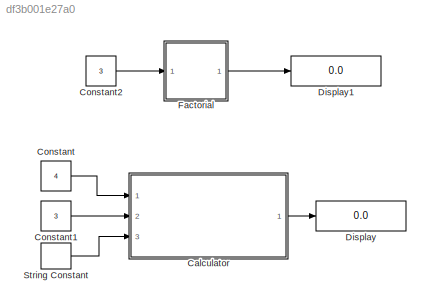
MODEL slx_df3b001e27a0
KIND model
CONFIG AbsTol = auto
CONFIG EnableMultiTasking = off
CONFIG FixedStep = auto
CONFIG MaxStep = auto
CONFIG MinStep = auto
CONFIG RelTol = 1e-3
CONFIG SampleTimeConstraint = Unconstrained
CONFIG SolverName = FixedStepDiscrete
CONFIG StartTime = 0.0
CONFIG StopTime = 20
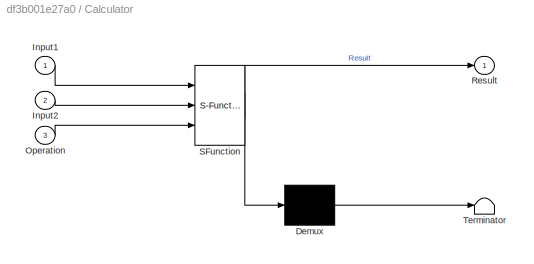
BLOCK [SubSystem] Calculator
  ErrorFcn = Stateflow.Translate.translate
  PermitHierarchicalResolution = ExplicitOnly
  Ports = [3, 1]
  RequestExecContextInheritance = off
  SFBlockType = Chart
  TreatAsAtomicUnit = on
BLOCK [Demux] Calculator/ Demux 
  Outputs = 1
  Ports = [1, 1]
BLOCK [S-Function] Calculator/ SFunction 
  EnableBusSupport = on
  FunctionName = sf_sfun
  PortCounts = [3 2]
  Ports = [3, 2]
  SFcnIsStateOwnerBlock = off
  SFunctionDeploymentMode = off
  Tag = Stateflow S-Function 3
BLOCK [Terminator] Calculator/ Terminator 
BLOCK [Inport] Calculator/Input1
BLOCK [Inport] Calculator/Input2
  Port = 2
BLOCK [Inport] Calculator/Operation
  Port = 3
BLOCK [Outport] Calculator/Result
BLOCK [Constant] Constant
  OutDataTypeStr = uint16
  Value = 4
BLOCK [Constant] Constant1
  OutDataTypeStr = uint16
  Value = 3
BLOCK [Constant] Constant2
  OutDataTypeStr = uint16
  Value = 3
BLOCK [Display] Display
  Decimation = 1
  Ports = [1]
BLOCK [Display] Display1
  Decimation = 1
  Ports = [1]
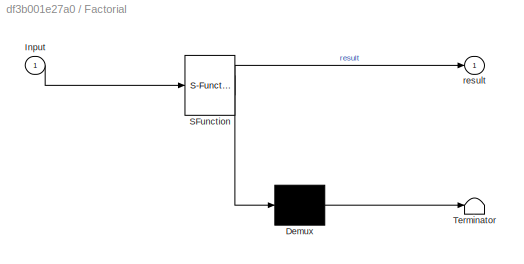
BLOCK [SubSystem] Factorial
  ErrorFcn = Stateflow.Translate.translate
  PermitHierarchicalResolution = ExplicitOnly
  Ports = [1, 1]
  RequestExecContextInheritance = off
  SFBlockType = Chart
  TreatAsAtomicUnit = on
BLOCK [Demux] Factorial/ Demux 
  Outputs = 1
  Ports = [1, 1]
BLOCK [S-Function] Factorial/ SFunction 
  EnableBusSupport = on
  FunctionName = sf_sfun
  PortCounts = [1 2]
  Ports = [1, 2]
  SFcnIsStateOwnerBlock = off
  SFunctionDeploymentMode = off
  Tag = Stateflow S-Function 1
BLOCK [Terminator] Factorial/ Terminator 
BLOCK [Inport] Factorial/Input
BLOCK [Outport] Factorial/result
BLOCK [StringConstant] String Constant
  String = '*'
LINE Calculator:1 -> Display:1
LINE Constant1:1 -> Calculator:2
LINE Constant2:1 -> Factorial:1
LINE Constant:1 -> Calculator:1
LINE Factorial:1 -> Display1:1
LINE String Constant:1 -> Calculator:3
CHART Factorial states=0 transitions=6
CHART Calculator states=2 transitions=24
  STATE_LABEL 'Calculator(Input1,Input2)'
  STATE_LABEL '% OperationSwitch'
  STATE_LABEL "[Operation == '+']"
  STATE_LABEL '{Result=Input1 + Input2 ;}'
  STATE_LABEL "[Operation == '-']"
  STATE_LABEL '{Result=Input1 - Input2;}'
  STATE_LABEL "[Operation == '*']"
  STATE_LABEL '{Result=Input1 * Input2 ;}'
  STATE_LABEL "[Operation == '/']"
  STATE_LABEL '{Result=Input1 / Input2 ;}'
  STATE_LABEL 'Do not put any code along\nthe transitions that run\ndown the right side!'
CHART  states=0 transitions=0
CHART  states=0 transitions=0
